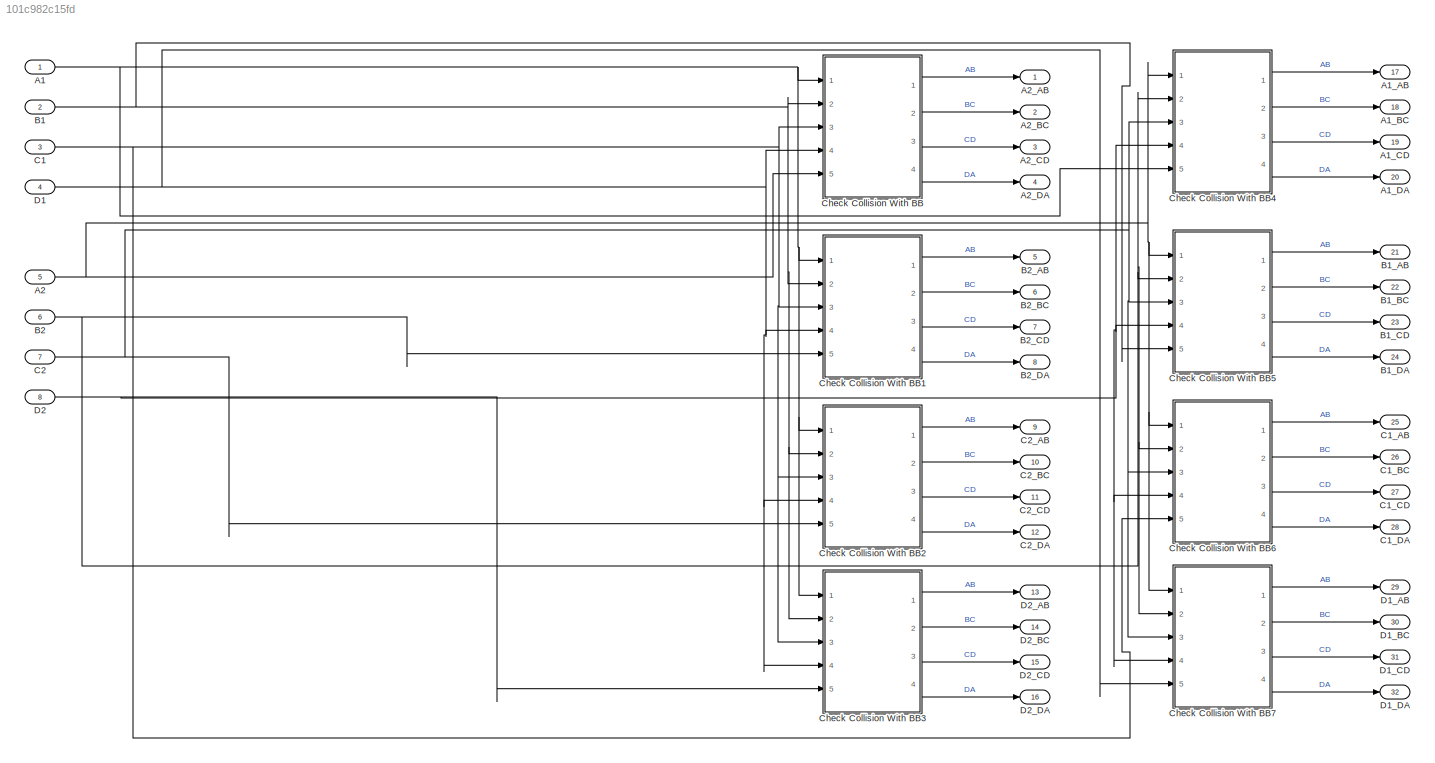
MODEL slx_101c982c15fd
KIND model
CONFIG AbsTol = auto
CONFIG EnableMultiTasking = off
CONFIG FixedStep = 0.01
CONFIG MaxStep = .01
CONFIG MinStep = auto
CONFIG RelTol = 1e-3
CONFIG SampleTimeConstraint = Unconstrained
CONFIG Solver = VariableStepAuto
CONFIG SolverName = VariableStepAuto
CONFIG StartTime = 0.0
CONFIG StopTime = 120
BLOCK [Inport] A1
  IconDisplay = Port number
  OutDataTypeStr = double
  PortDimensions = 2
  SamplingMode = Sample based
  SignalType = real
BLOCK [Outport] A1_AB
  IconDisplay = Port number
  OutDataTypeStr = double
  Port = 17
  PortDimensions = 1
  SampleTime = 0
  SamplingMode = Sample based
  SignalType = real
BLOCK [Outport] A1_BC
  IconDisplay = Port number
  OutDataTypeStr = double
  Port = 18
  PortDimensions = 1
  SampleTime = 0
  SamplingMode = Sample based
  SignalType = real
BLOCK [Outport] A1_CD
  IconDisplay = Port number
  OutDataTypeStr = double
  Port = 19
  PortDimensions = 1
  SampleTime = 0
  SamplingMode = Sample based
  SignalType = real
BLOCK [Outport] A1_DA
  IconDisplay = Port number
  OutDataTypeStr = double
  Port = 20
  PortDimensions = 1
  SampleTime = 0
  SamplingMode = Sample based
  SignalType = real
BLOCK [Inport] A2
  IconDisplay = Port number
  OutDataTypeStr = double
  Port = 5
  PortDimensions = 2
  SamplingMode = Sample based
  SignalType = real
BLOCK [Outport] A2_AB
  IconDisplay = Port number
  OutDataTypeStr = double
  PortDimensions = 1
  SampleTime = 0
  SamplingMode = Sample based
  SignalType = real
BLOCK [Outport] A2_BC
  IconDisplay = Port number
  OutDataTypeStr = double
  Port = 2
  PortDimensions = 1
  SampleTime = 0
  SamplingMode = Sample based
  SignalType = real
BLOCK [Outport] A2_CD
  IconDisplay = Port number
  OutDataTypeStr = double
  Port = 3
  PortDimensions = 1
  SampleTime = 0
  SamplingMode = Sample based
  SignalType = real
BLOCK [Outport] A2_DA
  IconDisplay = Port number
  OutDataTypeStr = double
  Port = 4
  PortDimensions = 1
  SampleTime = 0
  SamplingMode = Sample based
  SignalType = real
BLOCK [Inport] B1
  IconDisplay = Port number
  OutDataTypeStr = double
  Port = 2
  PortDimensions = 2
  SamplingMode = Sample based
  SignalType = real
BLOCK [Outport] B1_AB
  IconDisplay = Port number
  OutDataTypeStr = double
  Port = 21
  PortDimensions = 1
  SampleTime = 0
  SamplingMode = Sample based
  SignalType = real
BLOCK [Outport] B1_BC
  IconDisplay = Port number
  OutDataTypeStr = double
  Port = 22
  PortDimensions = 1
  SampleTime = 0
  SamplingMode = Sample based
  SignalType = real
BLOCK [Outport] B1_CD
  IconDisplay = Port number
  OutDataTypeStr = double
  Port = 23
  PortDimensions = 1
  SampleTime = 0
  SamplingMode = Sample based
  SignalType = real
BLOCK [Outport] B1_DA
  IconDisplay = Port number
  OutDataTypeStr = double
  Port = 24
  PortDimensions = 1
  SampleTime = 0
  SamplingMode = Sample based
  SignalType = real
BLOCK [Inport] B2
  IconDisplay = Port number
  OutDataTypeStr = double
  Port = 6
  PortDimensions = 2
  SamplingMode = Sample based
  SignalType = real
BLOCK [Outport] B2_AB
  IconDisplay = Port number
  OutDataTypeStr = double
  Port = 5
  PortDimensions = 1
  SampleTime = 0
  SamplingMode = Sample based
  SignalType = real
BLOCK [Outport] B2_BC
  IconDisplay = Port number
  OutDataTypeStr = double
  Port = 6
  PortDimensions = 1
  SampleTime = 0
  SamplingMode = Sample based
  SignalType = real
BLOCK [Outport] B2_CD
  IconDisplay = Port number
  OutDataTypeStr = double
  Port = 7
  PortDimensions = 1
  SampleTime = 0
  SamplingMode = Sample based
  SignalType = real
BLOCK [Outport] B2_DA
  IconDisplay = Port number
  OutDataTypeStr = double
  Port = 8
  PortDimensions = 1
  SampleTime = 0
  SamplingMode = Sample based
  SignalType = real
BLOCK [Inport] C1
  IconDisplay = Port number
  OutDataTypeStr = double
  Port = 3
  PortDimensions = 2
  SamplingMode = Sample based
  SignalType = real
BLOCK [Outport] C1_AB
  IconDisplay = Port number
  OutDataTypeStr = double
  Port = 25
  PortDimensions = 1
  SampleTime = 0
  SamplingMode = Sample based
  SignalType = real
BLOCK [Outport] C1_BC
  IconDisplay = Port number
  OutDataTypeStr = double
  Port = 26
  PortDimensions = 1
  SampleTime = 0
  SamplingMode = Sample based
  SignalType = real
BLOCK [Outport] C1_CD
  IconDisplay = Port number
  OutDataTypeStr = double
  Port = 27
  PortDimensions = 1
  SampleTime = 0
  SamplingMode = Sample based
  SignalType = real
BLOCK [Outport] C1_DA
  IconDisplay = Port number
  OutDataTypeStr = double
  Port = 28
  PortDimensions = 1
  SampleTime = 0
  SamplingMode = Sample based
  SignalType = real
BLOCK [Inport] C2
  IconDisplay = Port number
  OutDataTypeStr = double
  Port = 7
  PortDimensions = 2
  SamplingMode = Sample based
  SignalType = real
BLOCK [Outport] C2_AB
  IconDisplay = Port number
  OutDataTypeStr = double
  Port = 9
  PortDimensions = 1
  SampleTime = 0
  SamplingMode = Sample based
  SignalType = real
BLOCK [Outport] C2_BC
  IconDisplay = Port number
  OutDataTypeStr = double
  Port = 10
  PortDimensions = 1
  SampleTime = 0
  SamplingMode = Sample based
  SignalType = real
BLOCK [Outport] C2_CD
  IconDisplay = Port number
  OutDataTypeStr = double
  Port = 11
  PortDimensions = 1
  SampleTime = 0
  SamplingMode = Sample based
  SignalType = real
BLOCK [Outport] C2_DA
  IconDisplay = Port number
  OutDataTypeStr = double
  Port = 12
  PortDimensions = 1
  SampleTime = 0
  SamplingMode = Sample based
  SignalType = real
BLOCK [ModelReference] Check Collision With BB
  ModelNameDialog = check_collision_with_bounding
  ModelReferenceVersion = 1.644
  Ports = [5, 4]
BLOCK [ModelReference] Check Collision With BB1
  ModelNameDialog = check_collision_with_bounding
  ModelReferenceVersion = 1.644
  Ports = [5, 4]
BLOCK [ModelReference] Check Collision With BB2
  ModelNameDialog = check_collision_with_bounding
  ModelReferenceVersion = 1.644
  Ports = [5, 4]
BLOCK [ModelReference] Check Collision With BB3
  ModelNameDialog = check_collision_with_bounding
  ModelReferenceVersion = 1.644
  Ports = [5, 4]
BLOCK [ModelReference] Check Collision With BB4
  ModelNameDialog = check_collision_with_bounding
  ModelReferenceVersion = 1.644
  Ports = [5, 4]
BLOCK [ModelReference] Check Collision With BB5
  ModelNameDialog = check_collision_with_bounding
  ModelReferenceVersion = 1.644
  Ports = [5, 4]
BLOCK [ModelReference] Check Collision With BB6
  ModelNameDialog = check_collision_with_bounding
  ModelReferenceVersion = 1.644
  Ports = [5, 4]
BLOCK [ModelReference] Check Collision With BB7
  ModelNameDialog = check_collision_with_bounding
  ModelReferenceVersion = 1.644
  Ports = [5, 4]
BLOCK [Inport] D1
  IconDisplay = Port number
  OutDataTypeStr = double
  Port = 4
  PortDimensions = 2
  SamplingMode = Sample based
  SignalType = real
BLOCK [Outport] D1_AB
  IconDisplay = Port number
  OutDataTypeStr = double
  Port = 29
  PortDimensions = 1
  SampleTime = 0
  SamplingMode = Sample based
  SignalType = real
BLOCK [Outport] D1_BC
  IconDisplay = Port number
  OutDataTypeStr = double
  Port = 30
  PortDimensions = 1
  SampleTime = 0
  SamplingMode = Sample based
  SignalType = real
BLOCK [Outport] D1_CD
  IconDisplay = Port number
  OutDataTypeStr = double
  Port = 31
  PortDimensions = 1
  SampleTime = 0
  SamplingMode = Sample based
  SignalType = real
BLOCK [Outport] D1_DA
  IconDisplay = Port number
  OutDataTypeStr = double
  Port = 32
  PortDimensions = 1
  SampleTime = 0
  SamplingMode = Sample based
  SignalType = real
BLOCK [Inport] D2
  IconDisplay = Port number
  OutDataTypeStr = double
  Port = 8
  PortDimensions = 2
  SamplingMode = Sample based
  SignalType = real
BLOCK [Outport] D2_AB
  IconDisplay = Port number
  OutDataTypeStr = double
  Port = 13
  PortDimensions = 1
  SampleTime = 0
  SamplingMode = Sample based
  SignalType = real
BLOCK [Outport] D2_BC
  IconDisplay = Port number
  OutDataTypeStr = double
  Port = 14
  PortDimensions = 1
  SampleTime = 0
  SamplingMode = Sample based
  SignalType = real
BLOCK [Outport] D2_CD
  IconDisplay = Port number
  OutDataTypeStr = double
  Port = 15
  PortDimensions = 1
  SampleTime = 0
  SamplingMode = Sample based
  SignalType = real
BLOCK [Outport] D2_DA
  IconDisplay = Port number
  OutDataTypeStr = double
  Port = 16
  PortDimensions = 1
  SampleTime = 0
  SamplingMode = Sample based
  SignalType = real
NET A1:1 -> Check Collision With BB1:1, Check Collision With BB2:1, Check Collision With BB3:1, Check Collision With BB4:5, Check Collision With BB:1
NET A2:1 -> Check Collision With BB4:1, Check Collision With BB5:1, Check Collision With BB6:1, Check Collision With BB7:1, Check Collision With BB:5
NET B1:1 -> Check Collision With BB1:2, Check Collision With BB2:2, Check Collision With BB3:2, Check Collision With BB5:5, Check Collision With BB:2
NET B2:1 -> Check Collision With BB1:5, Check Collision With BB4:2, Check Collision With BB5:2, Check Collision With BB6:2, Check Collision With BB7:2
NET C1:1 -> Check Collision With BB1:3, Check Collision With BB2:3, Check Collision With BB3:3, Check Collision With BB6:5, Check Collision With BB:3
NET C2:1 -> Check Collision With BB2:5, Check Collision With BB4:3, Check Collision With BB5:3, Check Collision With BB6:3, Check Collision With BB7:3
LINE Check Collision With BB1:1 -> B2_AB:1
LINE Check Collision With BB1:2 -> B2_BC:1
LINE Check Collision With BB1:3 -> B2_CD:1
LINE Check Collision With BB1:4 -> B2_DA:1
LINE Check Collision With BB2:1 -> C2_AB:1
LINE Check Collision With BB2:2 -> C2_BC:1
LINE Check Collision With BB2:3 -> C2_CD:1
LINE Check Collision With BB2:4 -> C2_DA:1
LINE Check Collision With BB3:1 -> D2_AB:1
LINE Check Collision With BB3:2 -> D2_BC:1
LINE Check Collision With BB3:3 -> D2_CD:1
LINE Check Collision With BB3:4 -> D2_DA:1
LINE Check Collision With BB4:1 -> A1_AB:1
LINE Check Collision With BB4:2 -> A1_BC:1
LINE Check Collision With BB4:3 -> A1_CD:1
LINE Check Collision With BB4:4 -> A1_DA:1
LINE Check Collision With BB5:1 -> B1_AB:1
LINE Check Collision With BB5:2 -> B1_BC:1
LINE Check Collision With BB5:3 -> B1_CD:1
LINE Check Collision With BB5:4 -> B1_DA:1
LINE Check Collision With BB6:1 -> C1_AB:1
LINE Check Collision With BB6:2 -> C1_BC:1
LINE Check Collision With BB6:3 -> C1_CD:1
LINE Check Collision With BB6:4 -> C1_DA:1
LINE Check Collision With BB7:1 -> D1_AB:1
LINE Check Collision With BB7:2 -> D1_BC:1
LINE Check Collision With BB7:3 -> D1_CD:1
LINE Check Collision With BB7:4 -> D1_DA:1
LINE Check Collision With BB:1 -> A2_AB:1
LINE Check Collision With BB:2 -> A2_BC:1
LINE Check Collision With BB:3 -> A2_CD:1
LINE Check Collision With BB:4 -> A2_DA:1
NET D1:1 -> Check Collision With BB1:4, Check Collision With BB2:4, Check Collision With BB3:4, Check Collision With BB7:5, Check Collision With BB:4
NET D2:1 -> Check Collision With BB3:5, Check Collision With BB4:4, Check Collision With BB5:4, Check Collision With BB6:4, Check Collision With BB7:4
note: NET lines group one-source signal fan-out (src -> all destinations, sorted); 1:1 wires keep LINE
